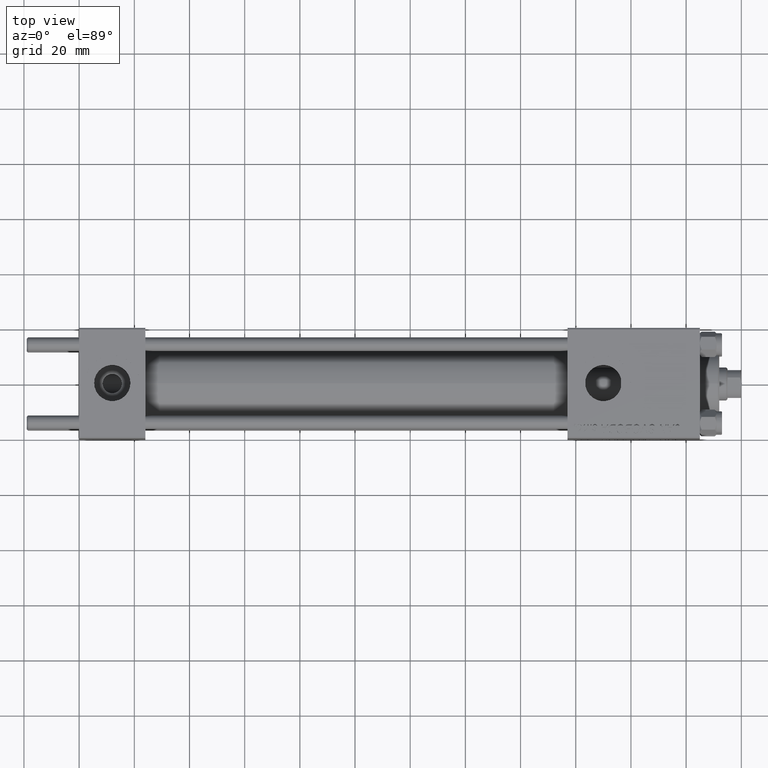
[diagram: clean part render]
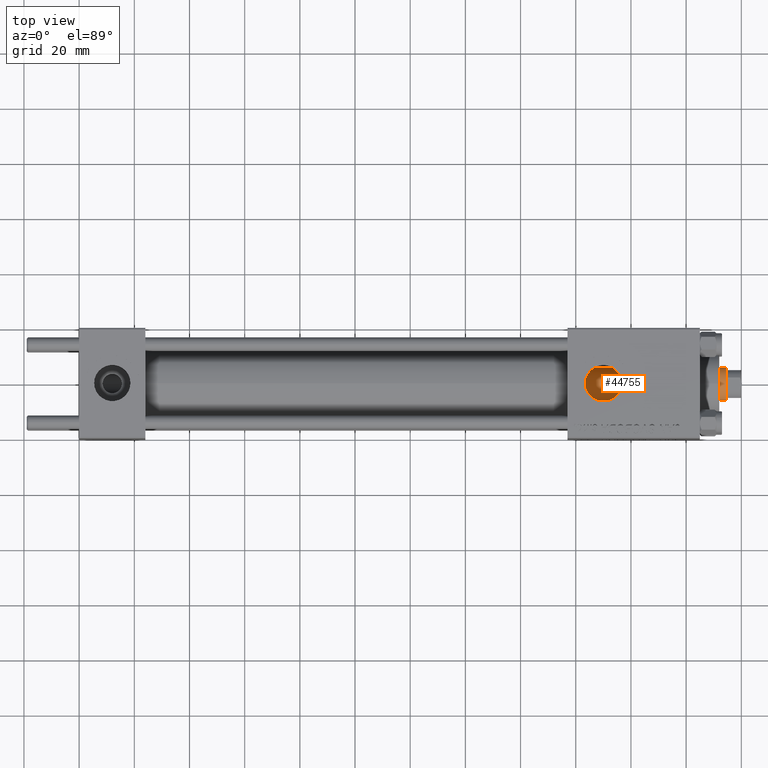
[diagram: same view with one face highlighted and labeled with its STEP entity id]
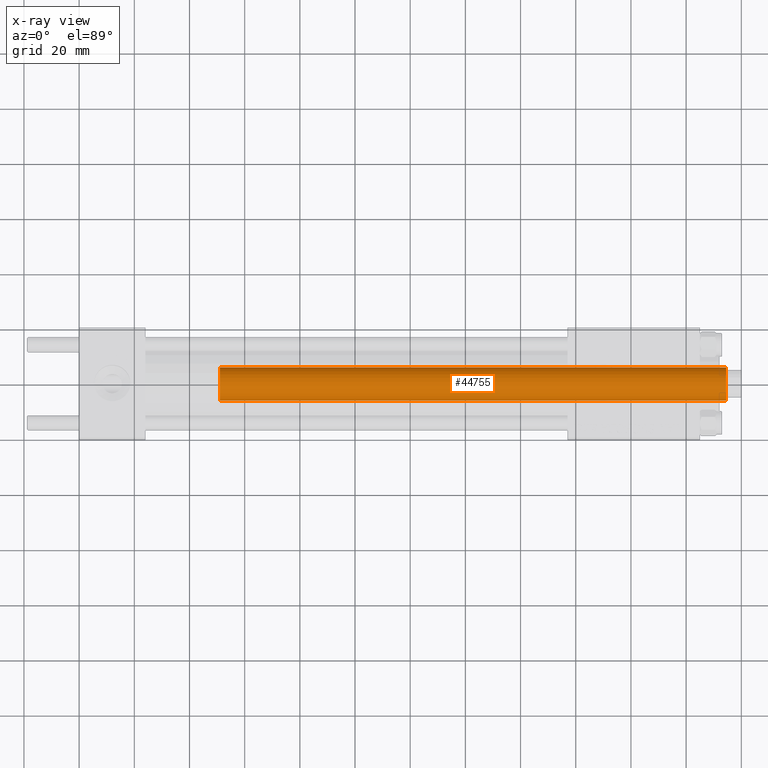
[diagram: x-ray of the same camera — body ghosted, the highlighted face saturated]
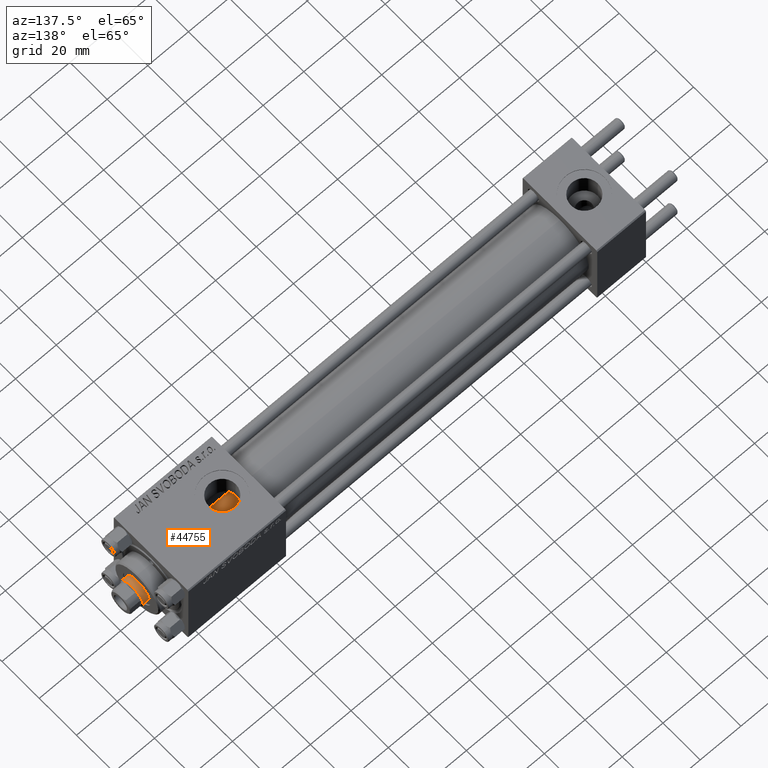
[diagram: same view with one face highlighted and labeled with its STEP entity id]
A machine part, top view. The second image highlights one B-rep face of the part: STEP entity #44755.
The next image is the same camera in x-ray: the body ghosted, the highlighted face saturated — about 0% of this face is hidden behind the body in this view.
A second angle (auxiliary view) of the same face is appended — the face is thin or edge-on in the first view.
In plain terms, the highlighted cylindrical surface (edge-blend (fillet) strip) has radius 6 mm, axis along (-1, 0, 0).
Its self-contained STEP definition (entity closure, byte-faithful):
#1553 = DIRECTION ( 'NONE',  ( -0.000000000000000000, -0.000000000000000000, -1.000000000000000000 ) ) ;
#4156 = CIRCLE ( 'NONE', #37209, 6.000000000000000888 ) ;
#4388 = ORIENTED_EDGE ( 'NONE', *, *, #18935, .T. ) ;
#8291 = DIRECTION ( 'NONE',  ( 1.000000000000000000, 0.000000000000000000, 0.000000000000000000 ) ) ;
#9913 = DIRECTION ( 'NONE',  ( -0.000000000000000000, -0.000000000000000000, -1.000000000000000000 ) ) ;
#9932 = VERTEX_POINT ( 'NONE', #47026 ) ;
#10107 = DIRECTION ( 'NONE',  ( 1.000000000000000000, 0.000000000000000000, 0.000000000000000000 ) ) ;
#10637 = DIRECTION ( 'NONE',  ( -1.000000000000000000, 0.000000000000000000, 0.000000000000000000 ) ) ;
#12954 = LINE ( 'NONE', #17234, #48587 ) ;
#13336 = CARTESIAN_POINT ( 'NONE',  ( 0.000000000000000000, 0.000000000000000000, 210.5000000000000000 ) ) ;
#14692 = DIRECTION ( 'NONE',  ( -0.000000000000000000, -0.000000000000000000, -1.000000000000000000 ) ) ;
#16700 = CARTESIAN_POINT ( 'NONE',  ( 6.000000000000000888, 7.347880794884120722E-16, 27.00000000000000000 ) ) ;
#17234 = CARTESIAN_POINT ( 'NONE',  ( 6.000000000000000888, 7.347880794884120722E-16, 211.0000000000000000 ) ) ;
#18935 = EDGE_CURVE ( 'NONE', #31733, #33614, #4156, .T. ) ;
#19158 = VERTEX_POINT ( 'NONE', #19657 ) ;
#19657 = CARTESIAN_POINT ( 'NONE',  ( 6.000000000000000888, 7.347880794884120722E-16, 210.5000000000000000 ) ) ;
#22274 = EDGE_CURVE ( 'NONE', #19158, #33614, #12954, .T. ) ;
#23676 = DIRECTION ( 'NONE',  ( 0.000000000000000000, 0.000000000000000000, -1.000000000000000000 ) ) ;
#25723 = DIRECTION ( 'NONE',  ( 0.000000000000000000, 0.000000000000000000, 1.000000000000000000 ) ) ;
#26271 = CARTESIAN_POINT ( 'NONE',  ( -6.000000000000000888, 0.000000000000000000, 211.0000000000000000 ) ) ;
#27594 = CARTESIAN_POINT ( 'NONE',  ( -6.000000000000000888, 0.000000000000000000, 27.00000000000000000 ) ) ;
#29619 = CIRCLE ( 'NONE', #32852, 6.000000000000000888 ) ;
#31733 = VERTEX_POINT ( 'NONE', #27594 ) ;
#32516 = EDGE_LOOP ( 'NONE', ( #42219, #34481, #38545, #4388 ) ) ;
#32852 = AXIS2_PLACEMENT_3D ( 'NONE', #13336, #23676, #8291 ) ;
#33391 = VECTOR ( 'NONE', #14692, 1000.000000000000000 ) ;
#33614 = VERTEX_POINT ( 'NONE', #16700 ) ;
#34110 = LINE ( 'NONE', #26271, #33391 ) ;
#34481 = ORIENTED_EDGE ( 'NONE', *, *, #48764, .T. ) ;
#37209 = AXIS2_PLACEMENT_3D ( 'NONE', #49683, #25723, #10107 ) ;
#38545 = ORIENTED_EDGE ( 'NONE', *, *, #40505, .T. ) ;
#40505 = EDGE_CURVE ( 'NONE', #9932, #31733, #34110, .T. ) ;
#42219 = ORIENTED_EDGE ( 'NONE', *, *, #22274, .F. ) ;
#44222 = FACE_OUTER_BOUND ( 'NONE', #32516, .T. ) ;
#44465 = CYLINDRICAL_SURFACE ( 'NONE', #45609, 6.000000000000000888 ) ;
#44755 = ADVANCED_FACE ( 'NONE', ( #44222 ), #44465, .T. ) ;
#45192 = CARTESIAN_POINT ( 'NONE',  ( 0.000000000000000000, 0.000000000000000000, 211.0000000000000000 ) ) ;
#45609 = AXIS2_PLACEMENT_3D ( 'NONE', #45192, #9913, #10637 ) ;
#47026 = CARTESIAN_POINT ( 'NONE',  ( -6.000000000000000888, 0.000000000000000000, 210.5000000000000000 ) ) ;
#48587 = VECTOR ( 'NONE', #1553, 1000.000000000000000 ) ;
#48764 = EDGE_CURVE ( 'NONE', #19158, #9932, #29619, .T. ) ;
#49683 = CARTESIAN_POINT ( 'NONE',  ( 0.000000000000000000, 0.000000000000000000, 27.00000000000000000 ) ) ;